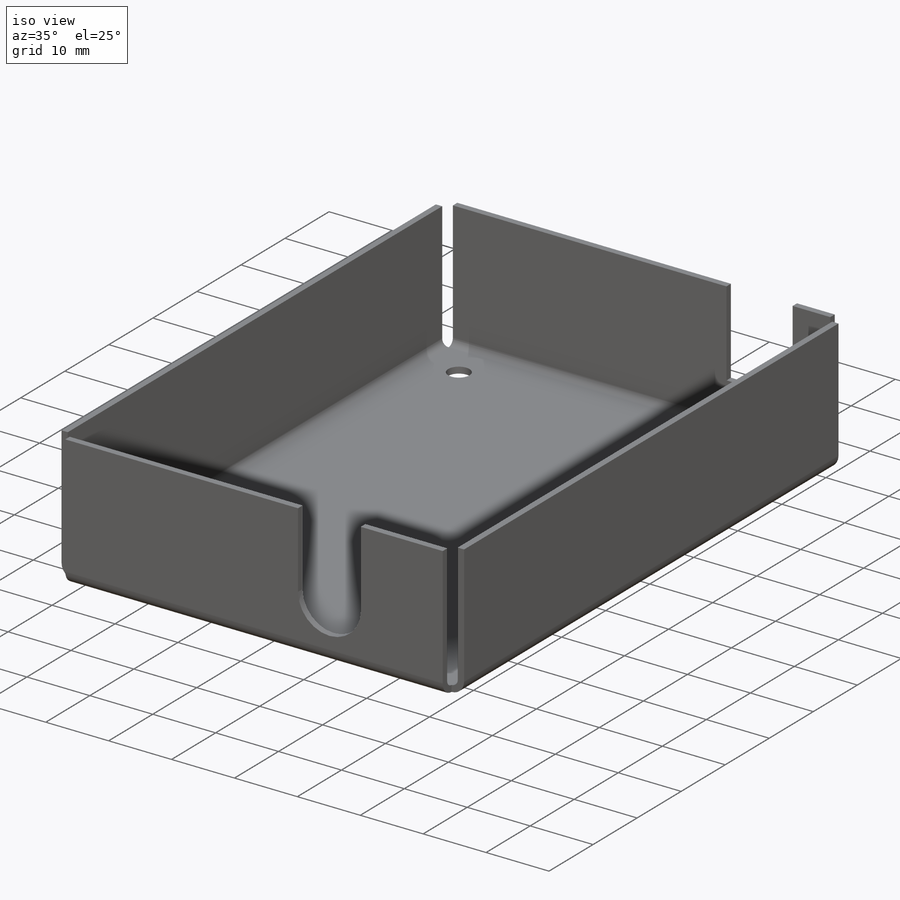
[diagram: iso view]
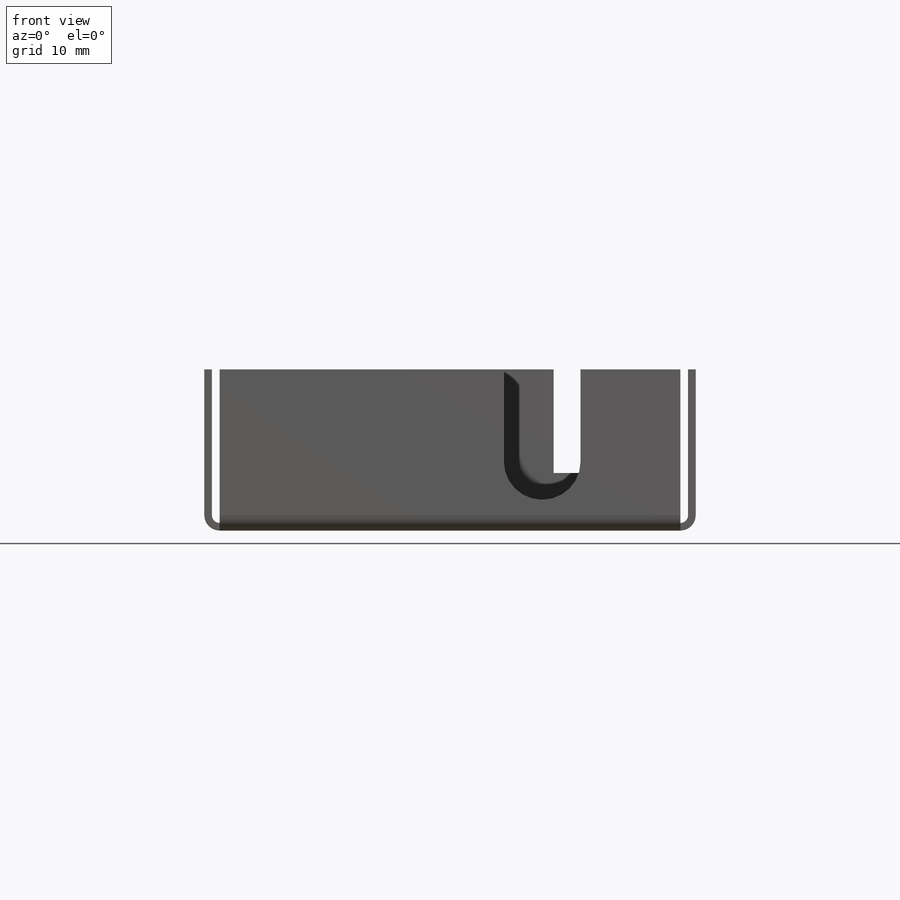
[diagram: front view]
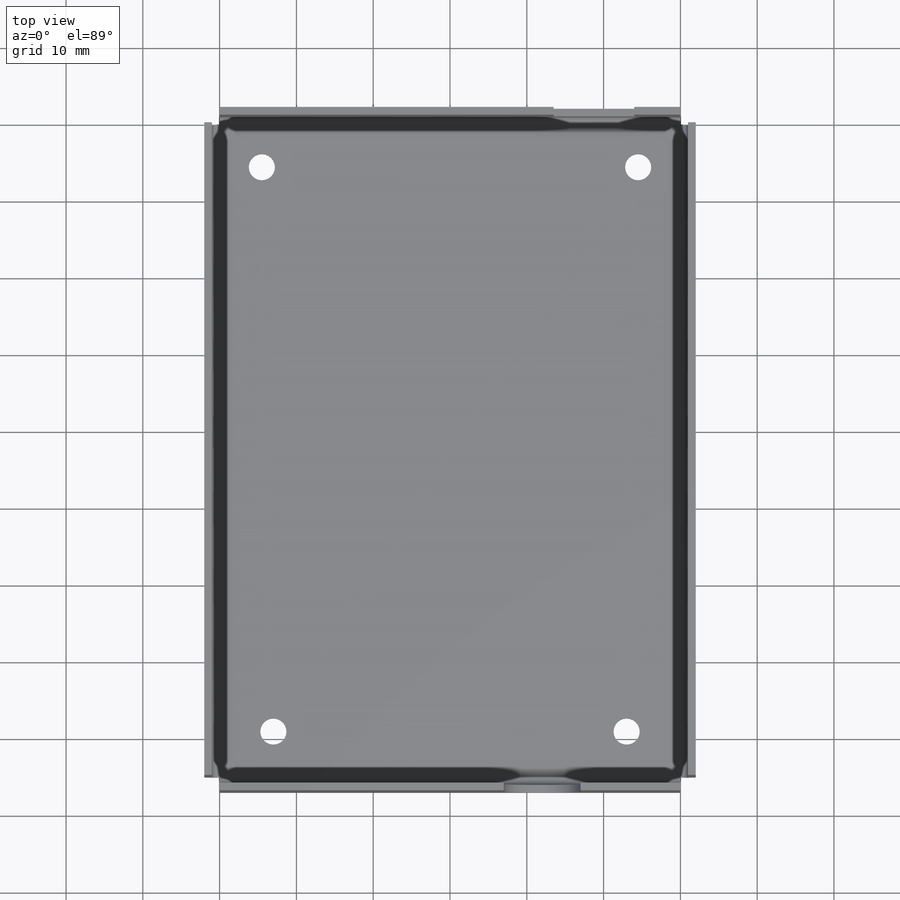
[diagram: top view]
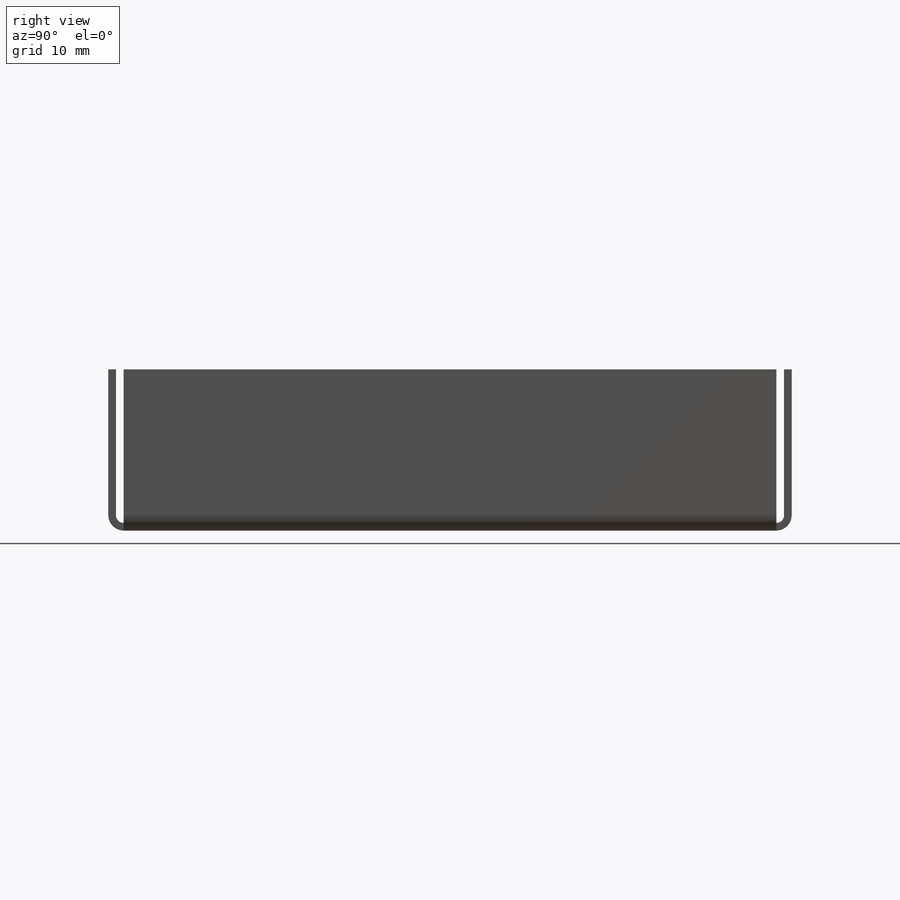
[diagram: right view]
SOLIDWORKS PART (.sldprt)
format: sldprt  version: not decoded by parser v0  size: 329,216 bytes
history: native  units: mm
features: sketch x10, sheet_metal_op x5, cut_extrude x3, material x1 + 5 further entries (+10 scaffold rows collapsed; 1 parser-record rows omitted)
feature tree (35):
  scaffold x10  (default folders/planes/origin — collapsed)
  material  "Material <not specified>"
  "Annotations"  RD1=60mm
  sketch  "Sketch2"  dims[D1=60.0mm]
  sheet_metal_op  "Sheet-Metal1"
  sheet_metal_op  "Base-Flange1"
  sketch  "Sketch7"  dims[c1.D1=1.0mm c1.D4=90.0deg c1.D5=1.0 c1.D8=0.35mm c1.D9=0.35mm c2.D1=1.0mm c2.D2=500.0mm c2.D3=0.0mm c2.D6=10.0mm c2.D7=20.0mm c2.Edge-Flange2=0.0]
  sketch  "Sketch10"
  sheet_metal_op  "EdgeBend2"  Edge-Flange3=0
  sketch  "Sketch15"
  sheet_metal_op  "EdgeBend3"  Edge-Flange4=0
  sketch  "Sketch18"
  sheet_metal_op  "EdgeBend4"
  sketch  "Sketch19"  dims[D2=5.0mm D1=13.0mm D3=12.0mm]
  cut_extrude  "Cut-Extrude4"  [1 undecoded]
  sketch  "Sketch20"  dims[D1=10.5mm D2=13.5mm D3=6.0mm]
  cut_extrude  "Cut-Extrude5"  [1 undecoded]
  sketch  "Sketch21"  dims[D1=3.4mm D4=3.4mm D2=46.0mm D3=49.0mm D5=73.5mm D6=5.5mm]
  cut_extrude  "Cut-Extrude6"  [1 undecoded]
  "Flat-Pattern1"
  sketch  "Bend-Lines1"
  sketch  "Bounding-Box1"
  "Flatten-<EdgeBend2>1"
  "Flatten-<EdgeBend3>1"
  "Flatten-<EdgeBend4>1"
  parser-record x1  (decoder bookkeeping rows leaked as tree rows — omitted from the tree; the rows remain in map.json)
decode coverage: 7 of 18 modeling features carry decoded parameters; 5 rows unclassified (native names shown)
note: 3 parameter values undecoded
summary: no parameter record found for 3 features
note: suppression state not decoded; provenance and decode notes live in map.json
